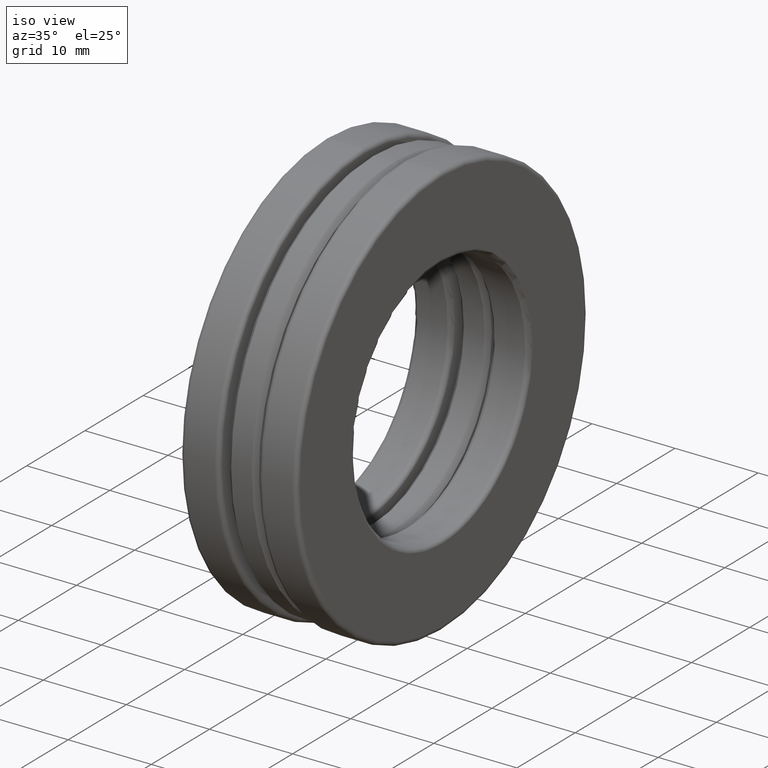
[diagram: clean part render]
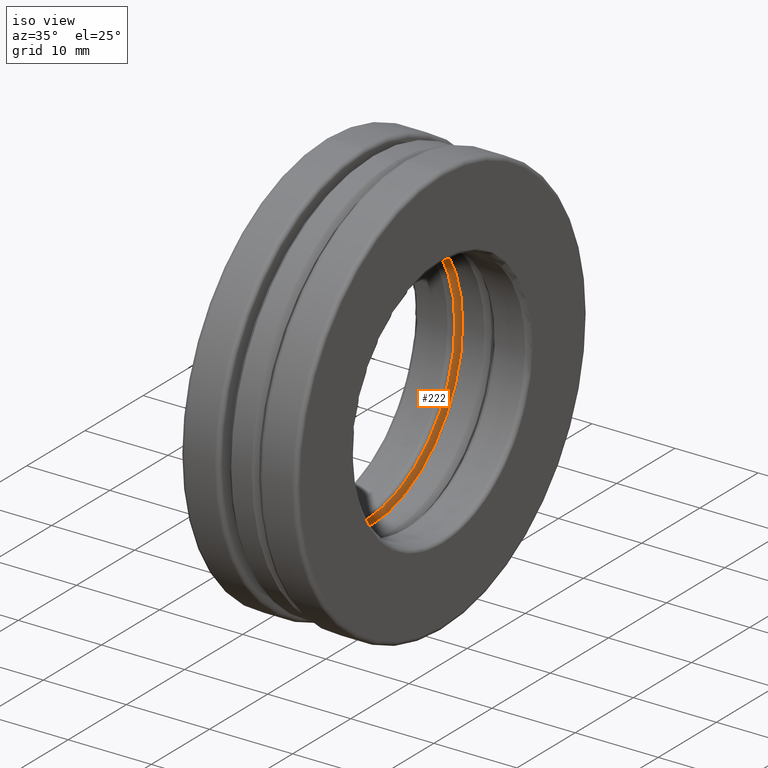
[diagram: same view with one face highlighted and labeled with its STEP entity id]
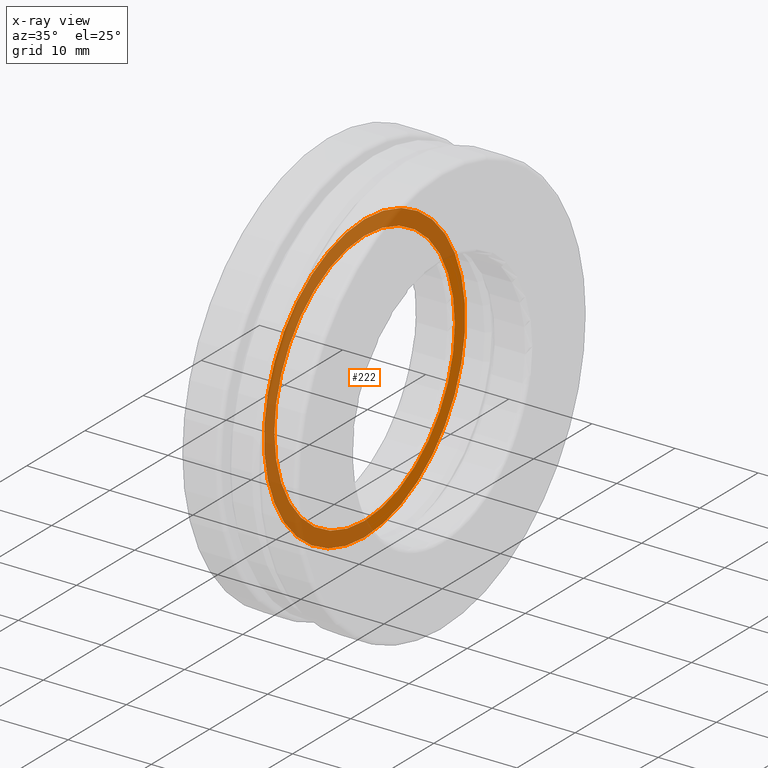
[diagram: x-ray of the same camera — body ghosted, the highlighted face saturated]
A machine part, iso view. The second image highlights one B-rep face of the part: STEP entity #222.
The next image is the same camera in x-ray: the body ghosted, the highlighted face saturated — about 67% of this face is hidden behind the body in this view.
In plain terms, the highlighted planar face has unit normal (1, 0, 0).
Its self-contained STEP definition (entity closure, byte-faithful):
#25 = CARTESIAN_POINT ( 'NONE',  ( -0.09183516999999991000, 0.0000000000000000000, 0.6104999999999999300 ) ) ;
#63 = VERTEX_POINT ( 'NONE', #25 ) ;
#94 = PLANE ( 'NONE',  #625 ) ;
#112 = VERTEX_POINT ( 'NONE', #297 ) ;
#131 = DIRECTION ( 'NONE',  ( 0.0000000000000000000, 0.0000000000000000000, 1.000000000000000000 ) ) ;
#176 = CARTESIAN_POINT ( 'NONE',  ( -0.09183516999999992400, 0.0000000000000000000, 0.0000000000000000000 ) ) ;
#187 = DIRECTION ( 'NONE',  ( -1.000000000000000000, -0.0000000000000000000, -0.0000000000000000000 ) ) ;
#215 = EDGE_CURVE ( 'NONE', #63, #63, #614, .T. ) ;
#222 = ADVANCED_FACE ( 'NONE', ( #771, #271 ), #94, .T. ) ;
#252 = EDGE_CURVE ( 'NONE', #112, #112, #457, .T. ) ;
#271 = FACE_OUTER_BOUND ( 'NONE', #494, .T. ) ;
#297 = CARTESIAN_POINT ( 'NONE',  ( -0.09183516999999992400, 0.0000000000000000000, 0.6811677304339313100 ) ) ;
#342 = EDGE_LOOP ( 'NONE', ( #661 ) ) ;
#377 = DIRECTION ( 'NONE',  ( 0.0000000000000000000, 0.0000000000000000000, 1.000000000000000000 ) ) ;
#432 = DIRECTION ( 'NONE',  ( 1.000000000000000000, 0.0000000000000000000, 0.0000000000000000000 ) ) ;
#457 = CIRCLE ( 'NONE', #672, 0.6811677304339313100 ) ;
#476 = AXIS2_PLACEMENT_3D ( 'NONE', #563, #667, #377 ) ;
#494 = EDGE_LOOP ( 'NONE', ( #549 ) ) ;
#549 = ORIENTED_EDGE ( 'NONE', *, *, #252, .F. ) ;
#563 = CARTESIAN_POINT ( 'NONE',  ( -0.09183516999999991000, 0.0000000000000000000, 0.0000000000000000000 ) ) ;
#614 = CIRCLE ( 'NONE', #476, 0.6104999999999999300 ) ;
#625 = AXIS2_PLACEMENT_3D ( 'NONE', #734, #432, #786 ) ;
#661 = ORIENTED_EDGE ( 'NONE', *, *, #215, .T. ) ;
#667 = DIRECTION ( 'NONE',  ( -1.000000000000000000, -0.0000000000000000000, -0.0000000000000000000 ) ) ;
#672 = AXIS2_PLACEMENT_3D ( 'NONE', #176, #187, #131 ) ;
#734 = CARTESIAN_POINT ( 'NONE',  ( -0.09183516999999991000, -1.771749469719744800E-017, 0.0000000000000000000 ) ) ;
#771 = FACE_BOUND ( 'NONE', #342, .T. ) ;
#786 = DIRECTION ( 'NONE',  ( 0.0000000000000000000, 0.0000000000000000000, -1.000000000000000000 ) ) ;